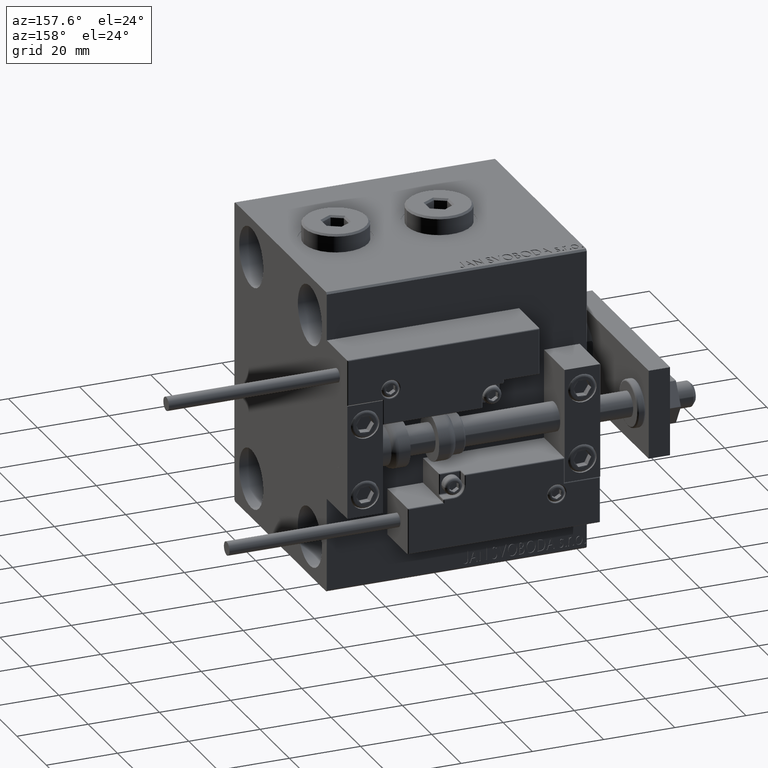
[diagram: clean part render]
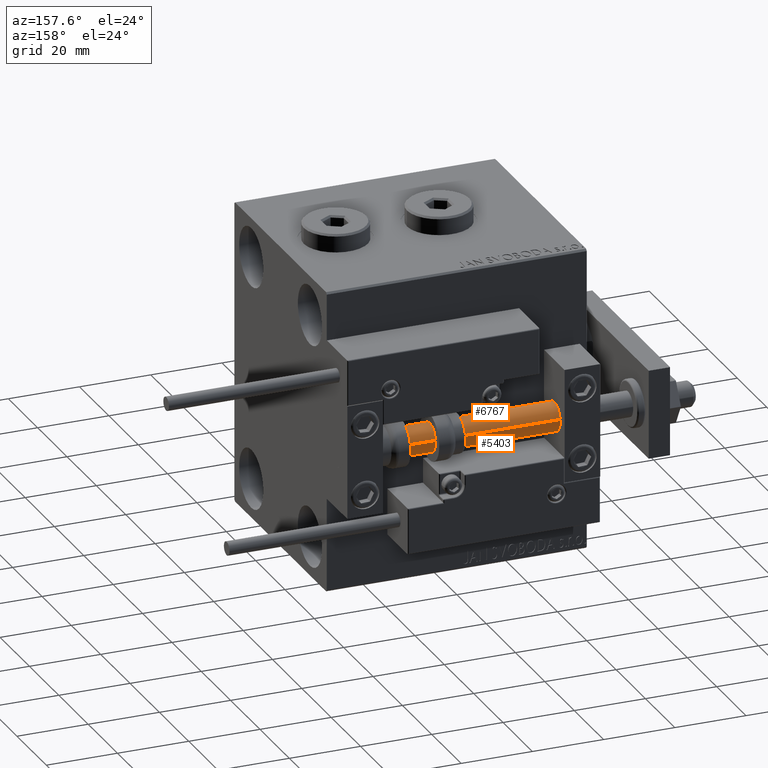
[diagram: same view with one multi-face feature highlighted, each face labeled with its STEP entity id]
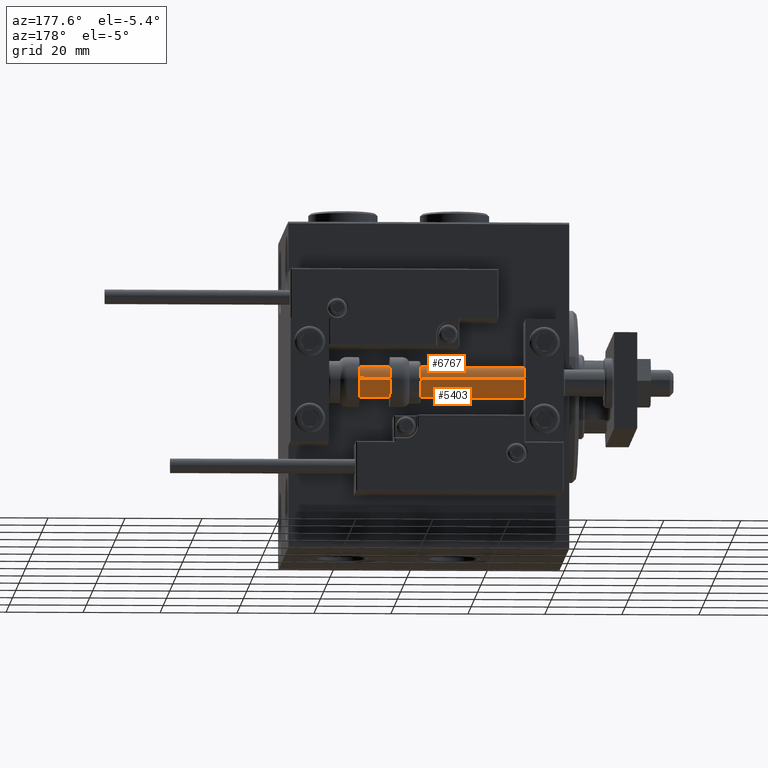
[diagram: same view with one multi-face feature highlighted, each face labeled with its STEP entity id]
A machine part, auxiliary view. The highlighted faces form ONE feature: a constant-radius fillet chain: 2 tangent blend faces with common blend radius 4 mm. The faces share edges in the B-rep.
A second angle (auxiliary view) of the same feature is appended — it is thin or edge-on in the first view.
Their STEP definitions:
[1] entity #6767 (Cylinder):
#14 = DIRECTION ( 'NONE',  ( -1.000000000000000000, 0.000000000000000000, 0.000000000000000000 ) ) ;
#2986 = CIRCLE ( 'NONE', #12933, 4.000000000000000000 ) ;
#3929 = FACE_OUTER_BOUND ( 'NONE', #35820, .T. ) ;
#4723 = DIRECTION ( 'NONE',  ( 1.000000000000000000, 0.000000000000000000, 0.000000000000000000 ) ) ;
#6115 = EDGE_CURVE ( 'NONE', #32443, #11856, #24668, .T. ) ;
#6767 = ADVANCED_FACE ( 'NONE', ( #3929 ), #19778, .T. ) ;
#7526 = VERTEX_POINT ( 'NONE', #9409 ) ;
#8010 = EDGE_CURVE ( 'NONE', #19070, #11856, #50349, .T. ) ;
#8370 = DIRECTION ( 'NONE',  ( -0.000000000000000000, -0.000000000000000000, -1.000000000000000000 ) ) ;
#9409 = CARTESIAN_POINT ( 'NONE',  ( 4.000000000000000000, 4.898587196589412829E-16, 73.00000000000000000 ) ) ;
#10903 = CARTESIAN_POINT ( 'NONE',  ( -4.000000000000000000, 0.000000000000000000, 73.00000000000000000 ) ) ;
#11339 = CARTESIAN_POINT ( 'NONE',  ( 0.000000000000000000, 0.000000000000000000, 2.000000000000029310 ) ) ;
#11429 = CARTESIAN_POINT ( 'NONE',  ( -4.000000000000000000, 0.000000000000000000, 2.000000000000029310 ) ) ;
#11661 = ORIENTED_EDGE ( 'NONE', *, *, #49714, .F. ) ;
#11856 = VERTEX_POINT ( 'NONE', #11429 ) ;
#12206 = AXIS2_PLACEMENT_3D ( 'NONE', #35624, #47528, #14 ) ;
#12933 = AXIS2_PLACEMENT_3D ( 'NONE', #28615, #32258, #4723 ) ;
#18951 = ORIENTED_EDGE ( 'NONE', *, *, #6115, .T. ) ;
#19070 = VERTEX_POINT ( 'NONE', #37159 ) ;
#19778 = CYLINDRICAL_SURFACE ( 'NONE', #12206, 4.000000000000000000 ) ;
#24071 = DIRECTION ( 'NONE',  ( -0.000000000000000000, -0.000000000000000000, 1.000000000000000000 ) ) ;
#24668 = CIRCLE ( 'NONE', #47034, 4.000000000000000000 ) ;
#26384 = VECTOR ( 'NONE', #30658, 1000.000000000000000 ) ;
#27194 = DIRECTION ( 'NONE',  ( 1.000000000000000000, 0.000000000000000000, 0.000000000000000000 ) ) ;
#28615 = CARTESIAN_POINT ( 'NONE',  ( 0.000000000000000000, 0.000000000000000000, 73.00000000000000000 ) ) ;
#30658 = DIRECTION ( 'NONE',  ( -0.000000000000000000, -0.000000000000000000, -1.000000000000000000 ) ) ;
#32258 = DIRECTION ( 'NONE',  ( 0.000000000000000000, 0.000000000000000000, 1.000000000000000000 ) ) ;
#32443 = VERTEX_POINT ( 'NONE', #36426 ) ;
#33992 = EDGE_CURVE ( 'NONE', #7526, #32443, #35657, .T. ) ;
#35624 = CARTESIAN_POINT ( 'NONE',  ( 0.000000000000000000, 0.000000000000000000, 73.00000000000000000 ) ) ;
#35657 = LINE ( 'NONE', #39537, #50695 ) ;
#35820 = EDGE_LOOP ( 'NONE', ( #11661, #44234, #18951, #41419 ) ) ;
#36426 = CARTESIAN_POINT ( 'NONE',  ( 4.000000000000000000, 4.898587196589412829E-16, 2.000000000000029310 ) ) ;
#37159 = CARTESIAN_POINT ( 'NONE',  ( -4.000000000000000000, 0.000000000000000000, 73.00000000000000000 ) ) ;
#39537 = CARTESIAN_POINT ( 'NONE',  ( 4.000000000000000000, 4.898587196589412829E-16, 73.00000000000000000 ) ) ;
#41419 = ORIENTED_EDGE ( 'NONE', *, *, #8010, .F. ) ;
#44234 = ORIENTED_EDGE ( 'NONE', *, *, #33992, .T. ) ;
#47034 = AXIS2_PLACEMENT_3D ( 'NONE', #11339, #24071, #27194 ) ;
#47528 = DIRECTION ( 'NONE',  ( -0.000000000000000000, -0.000000000000000000, -1.000000000000000000 ) ) ;
#49714 = EDGE_CURVE ( 'NONE', #7526, #19070, #2986, .T. ) ;
#50349 = LINE ( 'NONE', #10903, #26384 ) ;
#50695 = VECTOR ( 'NONE', #8370, 1000.000000000000000 ) ;
[2] entity #5403 (Cylinder):
#1895 = DIRECTION ( 'NONE',  ( -0.000000000000000000, -0.000000000000000000, 1.000000000000000000 ) ) ;
#5403 = ADVANCED_FACE ( 'NONE', ( #27121 ), #11786, .T. ) ;
#7526 = VERTEX_POINT ( 'NONE', #9409 ) ;
#8010 = EDGE_CURVE ( 'NONE', #19070, #11856, #50349, .T. ) ;
#8370 = DIRECTION ( 'NONE',  ( -0.000000000000000000, -0.000000000000000000, -1.000000000000000000 ) ) ;
#9225 = EDGE_LOOP ( 'NONE', ( #33177, #11849, #47411, #40856 ) ) ;
#9409 = CARTESIAN_POINT ( 'NONE',  ( 4.000000000000000000, 4.898587196589412829E-16, 73.00000000000000000 ) ) ;
#9987 = EDGE_CURVE ( 'NONE', #19070, #7526, #22347, .T. ) ;
#10903 = CARTESIAN_POINT ( 'NONE',  ( -4.000000000000000000, 0.000000000000000000, 73.00000000000000000 ) ) ;
#11268 = CARTESIAN_POINT ( 'NONE',  ( 0.000000000000000000, 0.000000000000000000, 73.00000000000000000 ) ) ;
#11429 = CARTESIAN_POINT ( 'NONE',  ( -4.000000000000000000, 0.000000000000000000, 2.000000000000029310 ) ) ;
#11786 = CYLINDRICAL_SURFACE ( 'NONE', #42846, 4.000000000000000000 ) ;
#11849 = ORIENTED_EDGE ( 'NONE', *, *, #9987, .F. ) ;
#11856 = VERTEX_POINT ( 'NONE', #11429 ) ;
#12001 = CIRCLE ( 'NONE', #23624, 4.000000000000000000 ) ;
#14117 = DIRECTION ( 'NONE',  ( 1.000000000000000000, 0.000000000000000000, 0.000000000000000000 ) ) ;
#19070 = VERTEX_POINT ( 'NONE', #37159 ) ;
#22347 = CIRCLE ( 'NONE', #31458, 4.000000000000000000 ) ;
#23487 = DIRECTION ( 'NONE',  ( -1.000000000000000000, 0.000000000000000000, 0.000000000000000000 ) ) ;
#23624 = AXIS2_PLACEMENT_3D ( 'NONE', #30219, #1895, #14117 ) ;
#26384 = VECTOR ( 'NONE', #30658, 1000.000000000000000 ) ;
#27121 = FACE_OUTER_BOUND ( 'NONE', #9225, .T. ) ;
#30219 = CARTESIAN_POINT ( 'NONE',  ( 0.000000000000000000, 0.000000000000000000, 2.000000000000029310 ) ) ;
#30658 = DIRECTION ( 'NONE',  ( -0.000000000000000000, -0.000000000000000000, -1.000000000000000000 ) ) ;
#31010 = DIRECTION ( 'NONE',  ( -0.000000000000000000, -0.000000000000000000, -1.000000000000000000 ) ) ;
#31458 = AXIS2_PLACEMENT_3D ( 'NONE', #40733, #31679, #40223 ) ;
#31679 = DIRECTION ( 'NONE',  ( 0.000000000000000000, 0.000000000000000000, 1.000000000000000000 ) ) ;
#32443 = VERTEX_POINT ( 'NONE', #36426 ) ;
#33177 = ORIENTED_EDGE ( 'NONE', *, *, #33992, .F. ) ;
#33992 = EDGE_CURVE ( 'NONE', #7526, #32443, #35657, .T. ) ;
#35657 = LINE ( 'NONE', #39537, #50695 ) ;
#36426 = CARTESIAN_POINT ( 'NONE',  ( 4.000000000000000000, 4.898587196589412829E-16, 2.000000000000029310 ) ) ;
#37159 = CARTESIAN_POINT ( 'NONE',  ( -4.000000000000000000, 0.000000000000000000, 73.00000000000000000 ) ) ;
#39537 = CARTESIAN_POINT ( 'NONE',  ( 4.000000000000000000, 4.898587196589412829E-16, 73.00000000000000000 ) ) ;
#40223 = DIRECTION ( 'NONE',  ( 1.000000000000000000, 0.000000000000000000, 0.000000000000000000 ) ) ;
#40733 = CARTESIAN_POINT ( 'NONE',  ( 0.000000000000000000, 0.000000000000000000, 73.00000000000000000 ) ) ;
#40856 = ORIENTED_EDGE ( 'NONE', *, *, #47011, .T. ) ;
#42846 = AXIS2_PLACEMENT_3D ( 'NONE', #11268, #31010, #23487 ) ;
#47011 = EDGE_CURVE ( 'NONE', #11856, #32443, #12001, .T. ) ;
#47411 = ORIENTED_EDGE ( 'NONE', *, *, #8010, .T. ) ;
#50349 = LINE ( 'NONE', #10903, #26384 ) ;
#50695 = VECTOR ( 'NONE', #8370, 1000.000000000000000 ) ;